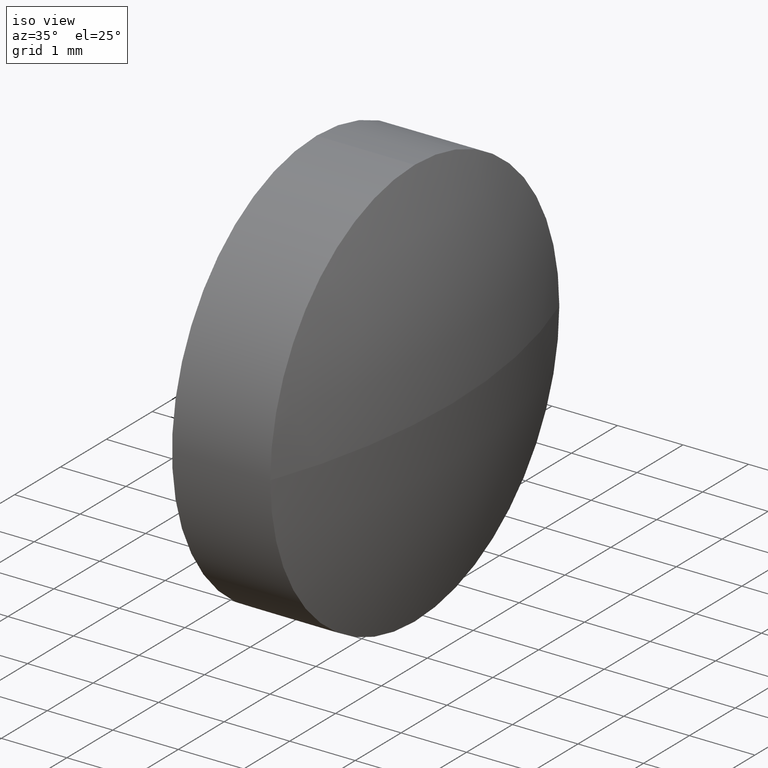
[diagram: clean part render]
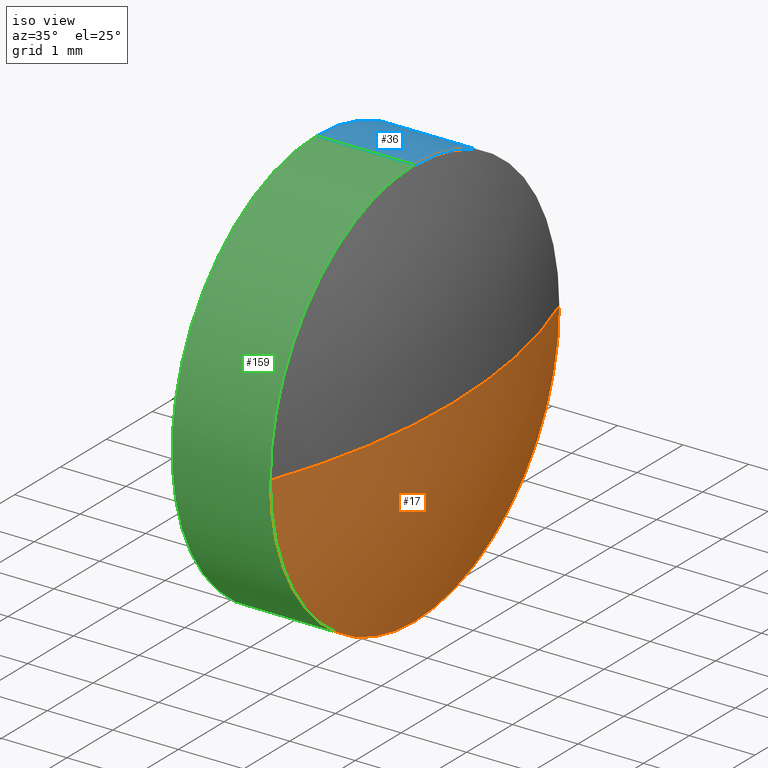
[diagram: same view with three faces highlighted in distinct colors, each labeled with its STEP entity id]
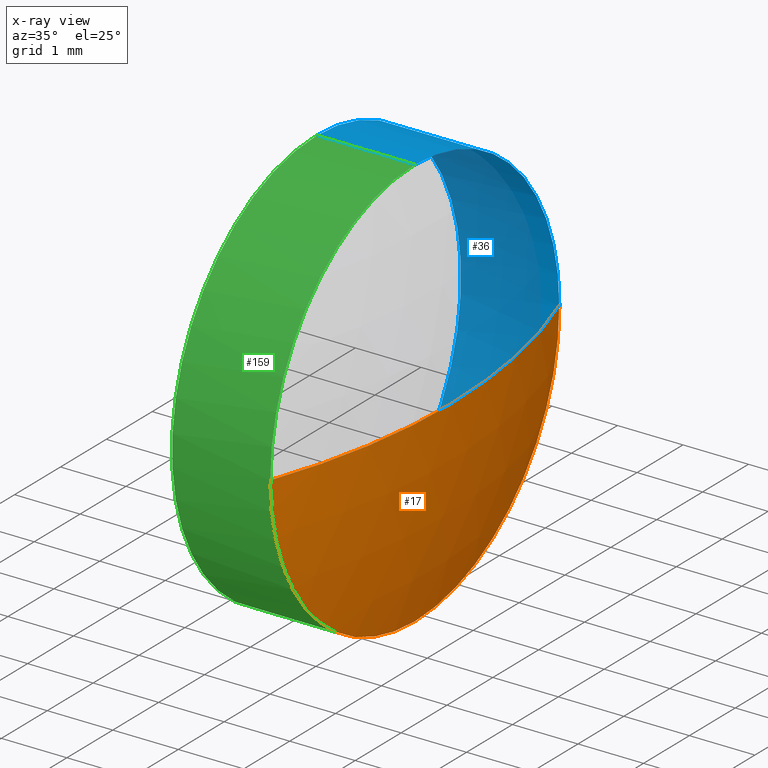
[diagram: x-ray of the same camera — body ghosted, the three highlighted faces saturated]
A machine part, iso view with three faces highlighted in distinct colors.
The next image is the same camera in x-ray (body ghosted, the three faces saturated) — at least one of them is partly hidden behind the body in this view.
Their STEP definitions:

[orange] entity #17 — the highlighted spherical surface has radius 9.1394 mm.
#3 = DIRECTION ( 'NONE',  ( 1.000000000000000000, 0.0000000000000000000, 0.0000000000000000000 ) ) ;
#9 = EDGE_CURVE ( 'NONE', #101, #160, #153, .T. ) ;
#10 = DIRECTION ( 'NONE',  ( 0.0000000000000000000, 1.000000000000000000, 1.224646799147353000E-016 ) ) ;
#12 = VERTEX_POINT ( 'NONE', #18 ) ;
#15 = FACE_OUTER_BOUND ( 'NONE', #178, .T. ) ;
#17 = ADVANCED_FACE ( 'NONE', ( #15 ), #43, .T. ) ;
#18 = CARTESIAN_POINT ( 'NONE',  ( 439.4198361449435900, 7.406328338348058300, -3.857637417314170600E-016 ) ) ;
#21 = ORIENTED_EDGE ( 'NONE', *, *, #182, .F. ) ;
#22 = DIRECTION ( 'NONE',  ( 0.0000000000000000000, 0.0000000000000000000, 1.000000000000000000 ) ) ;
#23 = CARTESIAN_POINT ( 'NONE',  ( 439.9798361449435900, 10.55632833834806500, 0.0000000000000000000 ) ) ;
#25 = AXIS2_PLACEMENT_3D ( 'NONE', #81, #116, #3 ) ;
#33 = DIRECTION ( 'NONE',  ( 0.0000000000000000000, 1.000000000000000000, 0.0000000000000000000 ) ) ;
#43 = SPHERICAL_SURFACE ( 'NONE', #64, 9.139375000000058000 ) ;
#48 = CIRCLE ( 'NONE', #112, 3.149999999999999900 ) ;
#53 = CARTESIAN_POINT ( 'NONE',  ( 439.4198361449435900, 10.55632833834806700, -3.149999999999999900 ) ) ;
#54 = DIRECTION ( 'NONE',  ( 0.0000000000000000000, 0.0000000000000000000, 1.000000000000000000 ) ) ;
#56 = VERTEX_POINT ( 'NONE', #53 ) ;
#58 = CIRCLE ( 'NONE', #94, 3.149999999999999900 ) ;
#64 = AXIS2_PLACEMENT_3D ( 'NONE', #104, #162, #33 ) ;
#66 = DIRECTION ( 'NONE',  ( -1.000000000000000000, -0.0000000000000000000, -0.0000000000000000000 ) ) ;
#81 = CARTESIAN_POINT ( 'NONE',  ( 430.8404611449435000, 10.55632833834806500, 0.0000000000000000000 ) ) ;
#85 = CARTESIAN_POINT ( 'NONE',  ( 439.4198361449435900, 10.55632833834806700, 0.0000000000000000000 ) ) ;
#94 = AXIS2_PLACEMENT_3D ( 'NONE', #169, #97, #22 ) ;
#97 = DIRECTION ( 'NONE',  ( -1.000000000000000000, -0.0000000000000000000, -0.0000000000000000000 ) ) ;
#101 = VERTEX_POINT ( 'NONE', #23 ) ;
#102 = AXIS2_PLACEMENT_3D ( 'NONE', #170, #128, #10 ) ;
#104 = CARTESIAN_POINT ( 'NONE',  ( 430.8404611449435000, 10.55632833834806500, 0.0000000000000000000 ) ) ;
#107 = CARTESIAN_POINT ( 'NONE',  ( 439.4198361449435900, 13.70632833834807200, 0.0000000000000000000 ) ) ;
#112 = AXIS2_PLACEMENT_3D ( 'NONE', #85, #66, #54 ) ;
#116 = DIRECTION ( 'NONE',  ( -0.0000000000000000000, 0.0000000000000000000, 1.000000000000000000 ) ) ;
#128 = DIRECTION ( 'NONE',  ( 0.0000000000000000000, 1.224646799147353200E-016, -1.000000000000000000 ) ) ;
#131 = EDGE_CURVE ( 'NONE', #160, #56, #48, .T. ) ;
#132 = CIRCLE ( 'NONE', #102, 9.139375000000058000 ) ;
#147 = ORIENTED_EDGE ( 'NONE', *, *, #9, .F. ) ;
#153 = CIRCLE ( 'NONE', #25, 9.139375000000061500 ) ;
#156 = ORIENTED_EDGE ( 'NONE', *, *, #131, .F. ) ;
#160 = VERTEX_POINT ( 'NONE', #107 ) ;
#162 = DIRECTION ( 'NONE',  ( -0.0000000000000000000, 0.0000000000000000000, -1.000000000000000000 ) ) ;
#169 = CARTESIAN_POINT ( 'NONE',  ( 439.4198361449435900, 10.55632833834806700, 0.0000000000000000000 ) ) ;
#170 = CARTESIAN_POINT ( 'NONE',  ( 430.8404611449435000, 10.55632833834806500, 0.0000000000000000000 ) ) ;
#178 = EDGE_LOOP ( 'NONE', ( #147, #185, #21, #156 ) ) ;
#182 = EDGE_CURVE ( 'NONE', #56, #12, #58, .T. ) ;
#185 = ORIENTED_EDGE ( 'NONE', *, *, #186, .T. ) ;
#186 = EDGE_CURVE ( 'NONE', #101, #12, #132, .T. ) ;

[blue] entity #36 — the highlighted cylindrical surface (partial cylindrical patch) has radius 3.15 mm, axis along (-1, -0, -0).
#2 = CARTESIAN_POINT ( 'NONE',  ( 437.0591980561945300, 10.55632833834806700, 3.149999999999999900 ) ) ;
#8 = CARTESIAN_POINT ( 'NONE',  ( 437.9198361449435900, 10.55632833834806700, -3.149999999999999900 ) ) ;
#11 = EDGE_CURVE ( 'NONE', #99, #75, #61, .T. ) ;
#14 = AXIS2_PLACEMENT_3D ( 'NONE', #146, #179, #83 ) ;
#19 = CARTESIAN_POINT ( 'NONE',  ( 437.9198361449435900, 10.55632833834806700, 0.0000000000000000000 ) ) ;
#20 = CARTESIAN_POINT ( 'NONE',  ( 437.9198361449435900, 10.55632833834806700, 3.149999999999999900 ) ) ;
#29 = ORIENTED_EDGE ( 'NONE', *, *, #176, .T. ) ;
#32 = VECTOR ( 'NONE', #96, 1000.000000000000000 ) ;
#36 = ADVANCED_FACE ( 'NONE', ( #126 ), #92, .T. ) ;
#37 = DIRECTION ( 'NONE',  ( -1.000000000000000000, -0.0000000000000000000, -0.0000000000000000000 ) ) ;
#40 = DIRECTION ( 'NONE',  ( 0.0000000000000000000, 0.0000000000000000000, 1.000000000000000000 ) ) ;
#41 = VERTEX_POINT ( 'NONE', #8 ) ;
#45 = ORIENTED_EDGE ( 'NONE', *, *, #11, .F. ) ;
#48 = CIRCLE ( 'NONE', #112, 3.149999999999999900 ) ;
#53 = CARTESIAN_POINT ( 'NONE',  ( 439.4198361449435900, 10.55632833834806700, -3.149999999999999900 ) ) ;
#54 = DIRECTION ( 'NONE',  ( 0.0000000000000000000, 0.0000000000000000000, 1.000000000000000000 ) ) ;
#56 = VERTEX_POINT ( 'NONE', #53 ) ;
#59 = ORIENTED_EDGE ( 'NONE', *, *, #174, .F. ) ;
#61 = LINE ( 'NONE', #2, #115 ) ;
#66 = DIRECTION ( 'NONE',  ( -1.000000000000000000, -0.0000000000000000000, -0.0000000000000000000 ) ) ;
#71 = CARTESIAN_POINT ( 'NONE',  ( 439.4198361449435900, 10.55632833834806700, 0.0000000000000000000 ) ) ;
#75 = VERTEX_POINT ( 'NONE', #20 ) ;
#77 = CIRCLE ( 'NONE', #86, 3.149999999999999900 ) ;
#80 = CIRCLE ( 'NONE', #171, 3.149999999999999900 ) ;
#83 = DIRECTION ( 'NONE',  ( 0.0000000000000000000, 0.0000000000000000000, 1.000000000000000000 ) ) ;
#84 = CARTESIAN_POINT ( 'NONE',  ( 437.0591980561945300, 10.55632833834806700, -3.149999999999999900 ) ) ;
#85 = CARTESIAN_POINT ( 'NONE',  ( 439.4198361449435900, 10.55632833834806700, 0.0000000000000000000 ) ) ;
#86 = AXIS2_PLACEMENT_3D ( 'NONE', #19, #124, #40 ) ;
#92 = CYLINDRICAL_SURFACE ( 'NONE', #14, 3.149999999999999900 ) ;
#95 = DIRECTION ( 'NONE',  ( -1.000000000000000000, -0.0000000000000000000, -0.0000000000000000000 ) ) ;
#96 = DIRECTION ( 'NONE',  ( -1.000000000000000000, -0.0000000000000000000, -0.0000000000000000000 ) ) ;
#99 = VERTEX_POINT ( 'NONE', #134 ) ;
#107 = CARTESIAN_POINT ( 'NONE',  ( 439.4198361449435900, 13.70632833834807200, 0.0000000000000000000 ) ) ;
#112 = AXIS2_PLACEMENT_3D ( 'NONE', #85, #66, #54 ) ;
#115 = VECTOR ( 'NONE', #95, 1000.000000000000000 ) ;
#124 = DIRECTION ( 'NONE',  ( -1.000000000000000000, -0.0000000000000000000, -0.0000000000000000000 ) ) ;
#126 = FACE_OUTER_BOUND ( 'NONE', #144, .T. ) ;
#131 = EDGE_CURVE ( 'NONE', #160, #56, #48, .T. ) ;
#134 = CARTESIAN_POINT ( 'NONE',  ( 439.4198361449435900, 10.55632833834806700, 3.149999999999999900 ) ) ;
#135 = ORIENTED_EDGE ( 'NONE', *, *, #165, .T. ) ;
#144 = EDGE_LOOP ( 'NONE', ( #150, #29, #59, #45, #135 ) ) ;
#145 = LINE ( 'NONE', #84, #32 ) ;
#146 = CARTESIAN_POINT ( 'NONE',  ( 437.0591980561945300, 10.55632833834806700, 0.0000000000000000000 ) ) ;
#150 = ORIENTED_EDGE ( 'NONE', *, *, #131, .T. ) ;
#160 = VERTEX_POINT ( 'NONE', #107 ) ;
#163 = DIRECTION ( 'NONE',  ( 0.0000000000000000000, 0.0000000000000000000, 1.000000000000000000 ) ) ;
#165 = EDGE_CURVE ( 'NONE', #99, #160, #80, .T. ) ;
#171 = AXIS2_PLACEMENT_3D ( 'NONE', #71, #37, #163 ) ;
#174 = EDGE_CURVE ( 'NONE', #75, #41, #77, .T. ) ;
#176 = EDGE_CURVE ( 'NONE', #56, #41, #145, .T. ) ;
#179 = DIRECTION ( 'NONE',  ( -1.000000000000000000, -0.0000000000000000000, -0.0000000000000000000 ) ) ;

[green] entity #159 — the highlighted cylindrical surface (partial cylindrical patch) has radius 3.15 mm, axis along (-1, -0, -0).
#2 = CARTESIAN_POINT ( 'NONE',  ( 437.0591980561945300, 10.55632833834806700, 3.149999999999999900 ) ) ;
#8 = CARTESIAN_POINT ( 'NONE',  ( 437.9198361449435900, 10.55632833834806700, -3.149999999999999900 ) ) ;
#11 = EDGE_CURVE ( 'NONE', #99, #75, #61, .T. ) ;
#12 = VERTEX_POINT ( 'NONE', #18 ) ;
#18 = CARTESIAN_POINT ( 'NONE',  ( 439.4198361449435900, 7.406328338348058300, -3.857637417314170600E-016 ) ) ;
#20 = CARTESIAN_POINT ( 'NONE',  ( 437.9198361449435900, 10.55632833834806700, 3.149999999999999900 ) ) ;
#22 = DIRECTION ( 'NONE',  ( 0.0000000000000000000, 0.0000000000000000000, 1.000000000000000000 ) ) ;
#27 = ORIENTED_EDGE ( 'NONE', *, *, #182, .T. ) ;
#31 = ORIENTED_EDGE ( 'NONE', *, *, #149, .T. ) ;
#32 = VECTOR ( 'NONE', #96, 1000.000000000000000 ) ;
#41 = VERTEX_POINT ( 'NONE', #8 ) ;
#46 = FACE_OUTER_BOUND ( 'NONE', #109, .T. ) ;
#49 = CYLINDRICAL_SURFACE ( 'NONE', #78, 3.149999999999999900 ) ;
#53 = CARTESIAN_POINT ( 'NONE',  ( 439.4198361449435900, 10.55632833834806700, -3.149999999999999900 ) ) ;
#56 = VERTEX_POINT ( 'NONE', #53 ) ;
#58 = CIRCLE ( 'NONE', #94, 3.149999999999999900 ) ;
#61 = LINE ( 'NONE', #2, #115 ) ;
#67 = AXIS2_PLACEMENT_3D ( 'NONE', #105, #68, #133 ) ;
#68 = DIRECTION ( 'NONE',  ( -1.000000000000000000, -0.0000000000000000000, -0.0000000000000000000 ) ) ;
#75 = VERTEX_POINT ( 'NONE', #20 ) ;
#78 = AXIS2_PLACEMENT_3D ( 'NONE', #106, #125, #181 ) ;
#84 = CARTESIAN_POINT ( 'NONE',  ( 437.0591980561945300, 10.55632833834806700, -3.149999999999999900 ) ) ;
#88 = ORIENTED_EDGE ( 'NONE', *, *, #11, .T. ) ;
#91 = EDGE_CURVE ( 'NONE', #41, #75, #138, .T. ) ;
#94 = AXIS2_PLACEMENT_3D ( 'NONE', #169, #97, #22 ) ;
#95 = DIRECTION ( 'NONE',  ( -1.000000000000000000, -0.0000000000000000000, -0.0000000000000000000 ) ) ;
#96 = DIRECTION ( 'NONE',  ( -1.000000000000000000, -0.0000000000000000000, -0.0000000000000000000 ) ) ;
#97 = DIRECTION ( 'NONE',  ( -1.000000000000000000, -0.0000000000000000000, -0.0000000000000000000 ) ) ;
#99 = VERTEX_POINT ( 'NONE', #134 ) ;
#103 = AXIS2_PLACEMENT_3D ( 'NONE', #120, #139, #136 ) ;
#105 = CARTESIAN_POINT ( 'NONE',  ( 437.9198361449435900, 10.55632833834806700, 0.0000000000000000000 ) ) ;
#106 = CARTESIAN_POINT ( 'NONE',  ( 437.0591980561945300, 10.55632833834806700, 0.0000000000000000000 ) ) ;
#109 = EDGE_LOOP ( 'NONE', ( #119, #27, #31, #88, #113 ) ) ;
#111 = CIRCLE ( 'NONE', #103, 3.149999999999999900 ) ;
#113 = ORIENTED_EDGE ( 'NONE', *, *, #91, .F. ) ;
#115 = VECTOR ( 'NONE', #95, 1000.000000000000000 ) ;
#119 = ORIENTED_EDGE ( 'NONE', *, *, #176, .F. ) ;
#120 = CARTESIAN_POINT ( 'NONE',  ( 439.4198361449435900, 10.55632833834806700, 0.0000000000000000000 ) ) ;
#125 = DIRECTION ( 'NONE',  ( -1.000000000000000000, -0.0000000000000000000, -0.0000000000000000000 ) ) ;
#133 = DIRECTION ( 'NONE',  ( 0.0000000000000000000, 0.0000000000000000000, 1.000000000000000000 ) ) ;
#134 = CARTESIAN_POINT ( 'NONE',  ( 439.4198361449435900, 10.55632833834806700, 3.149999999999999900 ) ) ;
#136 = DIRECTION ( 'NONE',  ( 0.0000000000000000000, 0.0000000000000000000, 1.000000000000000000 ) ) ;
#138 = CIRCLE ( 'NONE', #67, 3.149999999999999900 ) ;
#139 = DIRECTION ( 'NONE',  ( -1.000000000000000000, -0.0000000000000000000, -0.0000000000000000000 ) ) ;
#145 = LINE ( 'NONE', #84, #32 ) ;
#149 = EDGE_CURVE ( 'NONE', #12, #99, #111, .T. ) ;
#159 = ADVANCED_FACE ( 'NONE', ( #46 ), #49, .T. ) ;
#169 = CARTESIAN_POINT ( 'NONE',  ( 439.4198361449435900, 10.55632833834806700, 0.0000000000000000000 ) ) ;
#176 = EDGE_CURVE ( 'NONE', #56, #41, #145, .T. ) ;
#181 = DIRECTION ( 'NONE',  ( 0.0000000000000000000, 0.0000000000000000000, 1.000000000000000000 ) ) ;
#182 = EDGE_CURVE ( 'NONE', #56, #12, #58, .T. ) ;